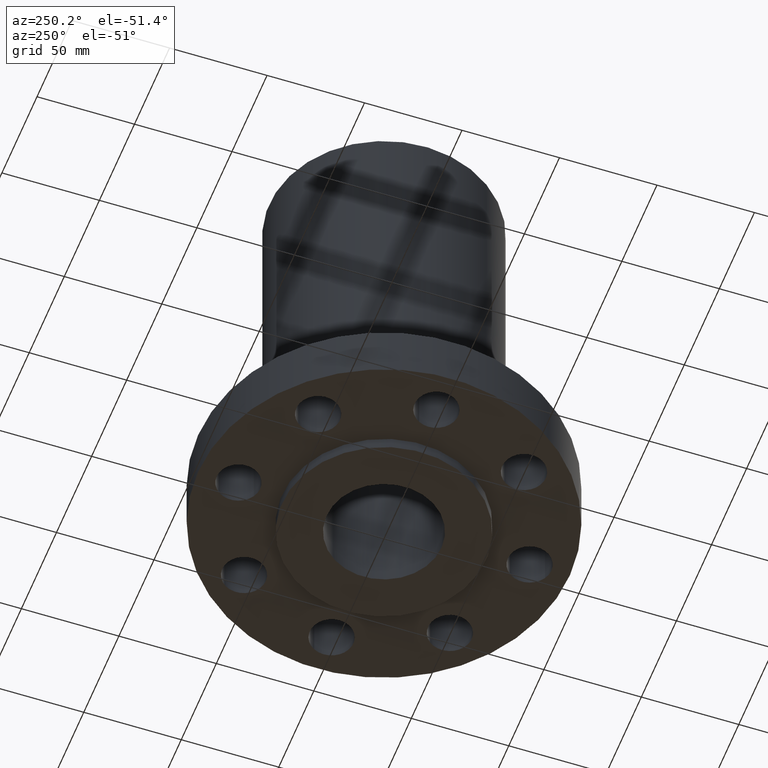
[diagram: clean part render]
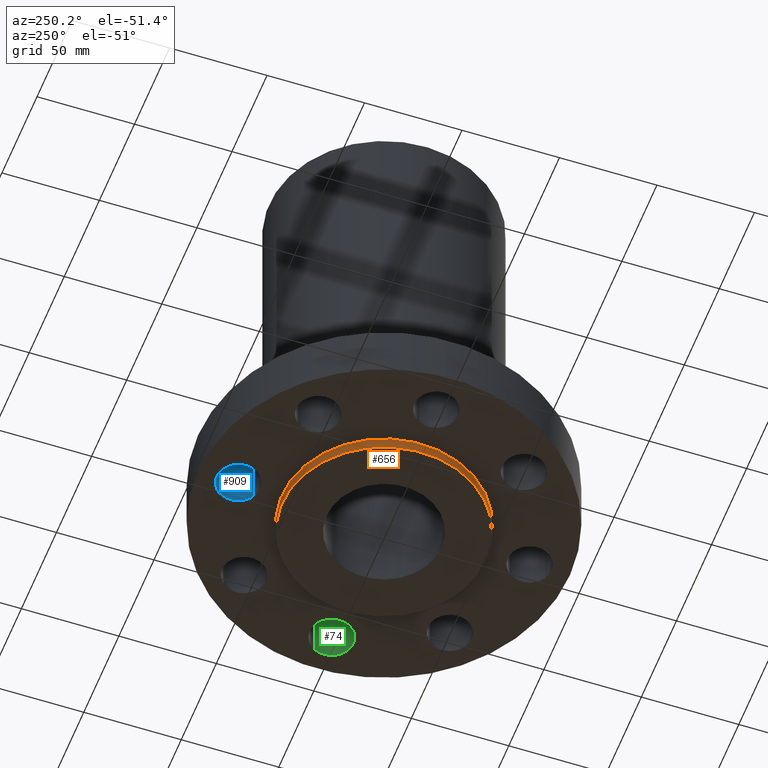
[diagram: same view with three faces highlighted in distinct colors, each labeled with its STEP entity id]
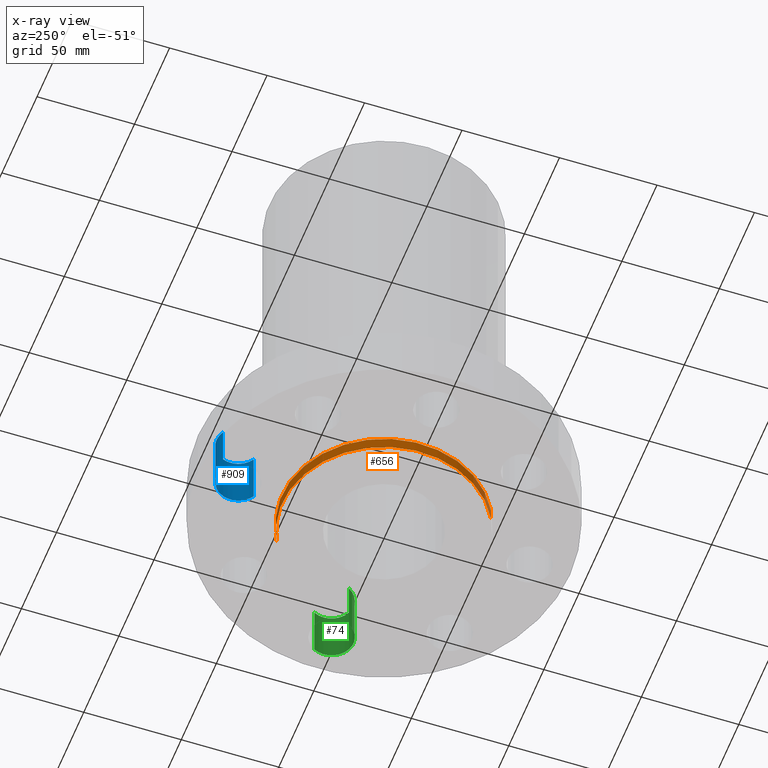
[diagram: x-ray of the same camera — body ghosted, the three highlighted faces saturated]
A machine part, auxiliary view with three faces highlighted in distinct colors.
The next image is the same camera in x-ray (body ghosted, the three faces saturated) — at least one of them is partly hidden behind the body in this view.
Their STEP definitions:

[orange] entity #656 — the highlighted cylindrical surface (partial cylindrical patch) has radius 52.324 mm, axis along (0, 0, -1).
#118=AXIS2_PLACEMENT_3D('Circle Axis2P3D',#116,#117,$) ;
#614=AXIS2_PLACEMENT_3D('Circle Axis2P3D',#612,#613,$) ;
#638=AXIS2_PLACEMENT_3D('Cylinder Axis2P3D',#635,#636,#637) ;
#111=CARTESIAN_POINT('Vertex',(0.987616609529,1.8078200775,0.)) ;
#113=CARTESIAN_POINT('Vertex',(-0.987616609529,-1.8078200775,0.)) ;
#116=CARTESIAN_POINT('Axis2P3D Location',(0.,0.,0.)) ;
#612=CARTESIAN_POINT('Axis2P3D Location',(0.,0.,-0.250000000001)) ;
#616=CARTESIAN_POINT('Vertex',(-0.987616609529,-1.8078200775,-0.250000000001)) ;
#618=CARTESIAN_POINT('Vertex',(0.987616609529,1.8078200775,-0.250000000001)) ;
#635=CARTESIAN_POINT('Axis2P3D Location',(0.,0.,4.25000000002)) ;
#640=CARTESIAN_POINT('Line Origine',(-0.987616609529,-1.8078200775,-0.125000000001)) ;
#645=CARTESIAN_POINT('Line Origine',(0.987616609529,1.8078200775,-0.125000000001)) ;
#117=DIRECTION('Axis2P3D Direction',(0.,0.,-0.0393700787402)) ;
#613=DIRECTION('Axis2P3D Direction',(0.,0.,-0.0393700787402)) ;
#636=DIRECTION('Axis2P3D Direction',(0.,0.,-0.0393700787402)) ;
#637=DIRECTION('Axis2P3D XDirection',(0.0188750212049,0.0345504945626,0.)) ;
#641=DIRECTION('Vector Direction',(0.,0.,-0.0393700787402)) ;
#646=DIRECTION('Vector Direction',(0.,0.,-0.0393700787402)) ;
#642=VECTOR('Line Direction',#641,0.0393700787402) ;
#647=VECTOR('Line Direction',#646,0.0393700787402) ;
#651=ORIENTED_EDGE('',*,*,#620,.F.) ;
#652=ORIENTED_EDGE('',*,*,#644,.T.) ;
#653=ORIENTED_EDGE('',*,*,#120,.T.) ;
#654=ORIENTED_EDGE('',*,*,#649,.F.) ;
#656=ADVANCED_FACE('PartBody',(#655),#639,.T.) ;
#119=CIRCLE('generated circle',#118,2.06000000001) ;
#615=CIRCLE('generated circle',#614,2.06000000001) ;
#639=CYLINDRICAL_SURFACE('generated cylinder',#638,2.06000000001) ;
#120=EDGE_CURVE('',#114,#112,#119,.T.) ;
#620=EDGE_CURVE('',#617,#619,#615,.T.) ;
#644=EDGE_CURVE('',#617,#114,#643,.F.) ;
#649=EDGE_CURVE('',#619,#112,#648,.F.) ;
#650=EDGE_LOOP('',(#651,#652,#653,#654)) ;
#655=FACE_OUTER_BOUND('',#650,.T.) ;
#643=LINE('Line',#640,#642) ;
#648=LINE('Line',#645,#647) ;
#112=VERTEX_POINT('',#111) ;
#114=VERTEX_POINT('',#113) ;
#617=VERTEX_POINT('',#616) ;
#619=VERTEX_POINT('',#618) ;

[blue] entity #909 — the highlighted cylindrical surface (edge-blend (fillet) strip) has radius 11.176 mm, axis along (0, 0, 1).
#217=AXIS2_PLACEMENT_3D('Circle Axis2P3D',#215,#216,$) ;
#882=AXIS2_PLACEMENT_3D('Cylinder Axis2P3D',#879,#880,#881) ;
#893=AXIS2_PLACEMENT_3D('Circle Axis2P3D',#891,#892,$) ;
#215=CARTESIAN_POINT('Axis2P3D Location',(-5.94450123421E-016,2.94000000001,0.)) ;
#219=CARTESIAN_POINT('Vertex',(-0.210947236987,3.32613632725,0.)) ;
#221=CARTESIAN_POINT('Vertex',(0.210947236987,2.55386367278,0.)) ;
#879=CARTESIAN_POINT('Axis2P3D Location',(-5.40069238426E-016,2.94000000001,0.00393700787402)) ;
#884=CARTESIAN_POINT('Line Origine',(0.210947236987,2.55386367278,0.560000000002)) ;
#888=CARTESIAN_POINT('Vertex',(0.210947236987,2.55386367278,1.12)) ;
#891=CARTESIAN_POINT('Axis2P3D Location',(-5.40069238426E-016,2.94000000001,1.12)) ;
#895=CARTESIAN_POINT('Vertex',(-0.210947236987,3.32613632725,1.12)) ;
#898=CARTESIAN_POINT('Line Origine',(-0.210947236987,3.32613632725,0.560000000002)) ;
#216=DIRECTION('Axis2P3D Direction',(0.,0.,-0.0393700787402)) ;
#880=DIRECTION('Axis2P3D Direction',(0.,0.,0.0393700787402)) ;
#881=DIRECTION('Axis2P3D XDirection',(-0.0188750212049,0.0345504945626,0.)) ;
#885=DIRECTION('Vector Direction',(0.,0.,0.0393700787402)) ;
#892=DIRECTION('Axis2P3D Direction',(0.,0.,0.0393700787402)) ;
#899=DIRECTION('Vector Direction',(0.,0.,0.0393700787402)) ;
#886=VECTOR('Line Direction',#885,0.0393700787402) ;
#900=VECTOR('Line Direction',#899,0.0393700787402) ;
#904=ORIENTED_EDGE('',*,*,#890,.F.) ;
#905=ORIENTED_EDGE('',*,*,#897,.F.) ;
#906=ORIENTED_EDGE('',*,*,#902,.T.) ;
#907=ORIENTED_EDGE('',*,*,#223,.T.) ;
#909=ADVANCED_FACE('PartBody',(#908),#883,.F.) ;
#218=CIRCLE('generated circle',#217,0.440000000002) ;
#894=CIRCLE('generated circle',#893,0.440000000002) ;
#883=CYLINDRICAL_SURFACE('generated cylinder',#882,0.440000000002) ;
#223=EDGE_CURVE('',#220,#222,#218,.T.) ;
#890=EDGE_CURVE('',#889,#222,#887,.F.) ;
#897=EDGE_CURVE('',#896,#889,#894,.F.) ;
#902=EDGE_CURVE('',#896,#220,#901,.F.) ;
#903=EDGE_LOOP('',(#904,#905,#906,#907)) ;
#908=FACE_OUTER_BOUND('',#903,.T.) ;
#887=LINE('Line',#884,#886) ;
#901=LINE('Line',#898,#900) ;
#220=VERTEX_POINT('',#219) ;
#222=VERTEX_POINT('',#221) ;
#889=VERTEX_POINT('',#888) ;
#896=VERTEX_POINT('',#895) ;

[green] entity #74 — the highlighted cylindrical surface (edge-blend (fillet) strip) has radius 11.176 mm, axis along (0, -0, 1).
#38=AXIS2_PLACEMENT_3D('Cylinder Axis2P3D',#35,#36,#37) ;
#51=AXIS2_PLACEMENT_3D('Circle Axis2P3D',#49,#50,$) ;
#65=AXIS2_PLACEMENT_3D('Circle Axis2P3D',#63,#64,$) ;
#35=CARTESIAN_POINT('Axis2P3D Location',(2.94000000001,0.,0.00393700787402)) ;
#40=CARTESIAN_POINT('Line Origine',(2.55386367278,-0.210947236987,0.560000000002)) ;
#44=CARTESIAN_POINT('Vertex',(2.55386367278,-0.210947236987,1.12)) ;
#46=CARTESIAN_POINT('Vertex',(2.55386367278,-0.210947236987,2.2401153548E-016)) ;
#49=CARTESIAN_POINT('Axis2P3D Location',(2.94000000001,0.,1.12)) ;
#53=CARTESIAN_POINT('Vertex',(3.32613632725,0.210947236987,1.12)) ;
#56=CARTESIAN_POINT('Line Origine',(3.32613632725,0.210947236987,0.560000000002)) ;
#60=CARTESIAN_POINT('Vertex',(3.32613632725,0.210947236987,2.2401153548E-016)) ;
#63=CARTESIAN_POINT('Axis2P3D Location',(2.94000000001,0.,0.)) ;
#36=DIRECTION('Axis2P3D Direction',(0.,-0.,0.0393700787402)) ;
#37=DIRECTION('Axis2P3D XDirection',(0.0345504945626,0.0188750212049,0.)) ;
#41=DIRECTION('Vector Direction',(0.,0.,0.0393700787402)) ;
#50=DIRECTION('Axis2P3D Direction',(0.,-0.,0.0393700787402)) ;
#57=DIRECTION('Vector Direction',(0.,0.,0.0393700787402)) ;
#64=DIRECTION('Axis2P3D Direction',(0.,-0.,0.0393700787402)) ;
#42=VECTOR('Line Direction',#41,0.0393700787402) ;
#58=VECTOR('Line Direction',#57,0.0393700787402) ;
#69=ORIENTED_EDGE('',*,*,#48,.F.) ;
#70=ORIENTED_EDGE('',*,*,#55,.F.) ;
#71=ORIENTED_EDGE('',*,*,#62,.T.) ;
#72=ORIENTED_EDGE('',*,*,#67,.T.) ;
#74=ADVANCED_FACE('PartBody',(#73),#39,.F.) ;
#52=CIRCLE('generated circle',#51,0.440000000002) ;
#66=CIRCLE('generated circle',#65,0.440000000002) ;
#39=CYLINDRICAL_SURFACE('generated cylinder',#38,0.440000000002) ;
#48=EDGE_CURVE('',#45,#47,#43,.F.) ;
#55=EDGE_CURVE('',#54,#45,#52,.F.) ;
#62=EDGE_CURVE('',#54,#61,#59,.F.) ;
#67=EDGE_CURVE('',#61,#47,#66,.F.) ;
#68=EDGE_LOOP('',(#69,#70,#71,#72)) ;
#73=FACE_OUTER_BOUND('',#68,.T.) ;
#43=LINE('Line',#40,#42) ;
#59=LINE('Line',#56,#58) ;
#45=VERTEX_POINT('',#44) ;
#47=VERTEX_POINT('',#46) ;
#54=VERTEX_POINT('',#53) ;
#61=VERTEX_POINT('',#60) ;